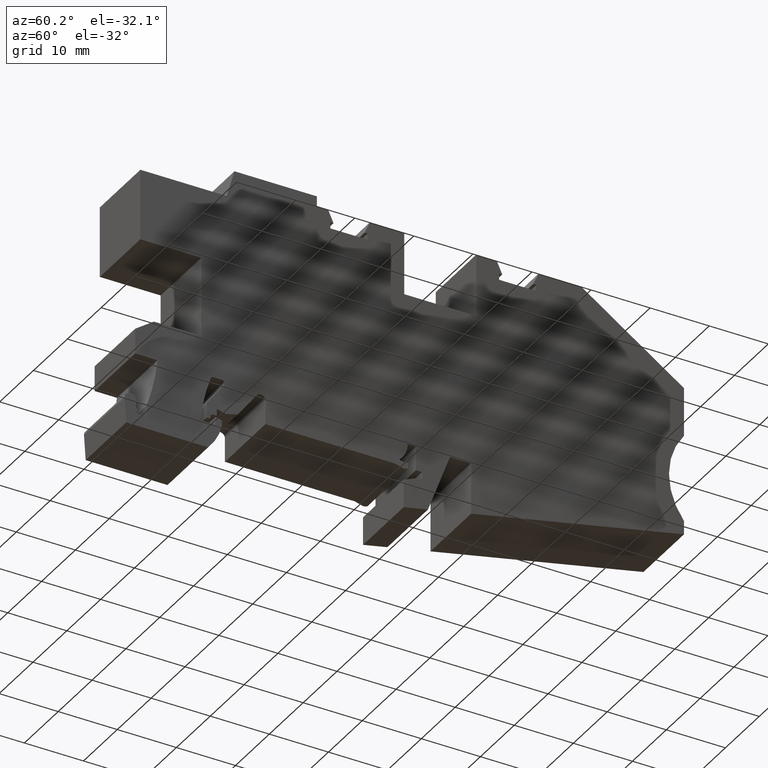
[diagram: clean part render]
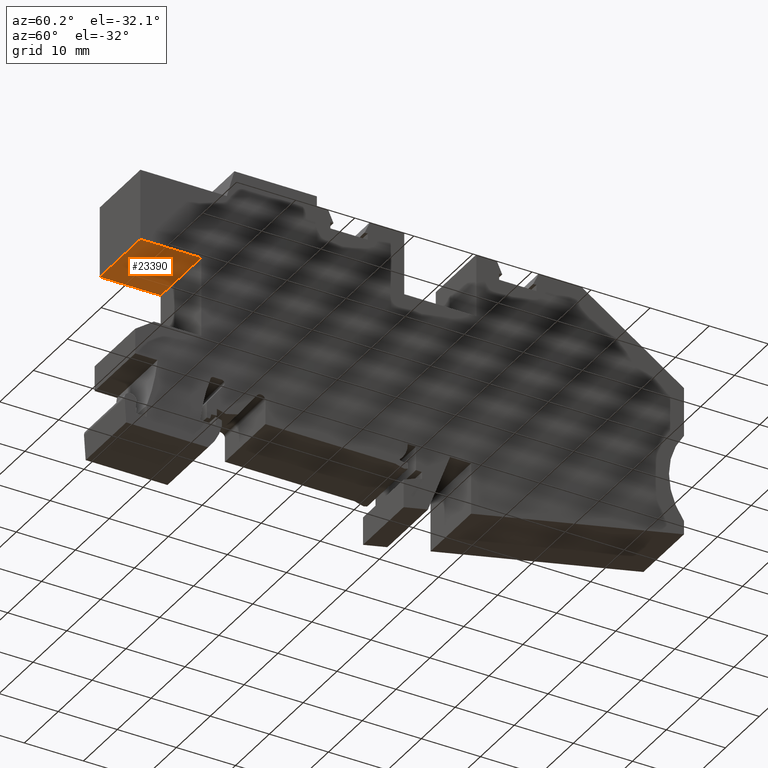
[diagram: same view with one face highlighted and labeled with its STEP entity id]
A machine part, auxiliary view. The second image highlights one B-rep face of the part: STEP entity #23390.
In plain terms, the highlighted planar face has unit normal (-0, -0, -1).
Its self-contained STEP definition (entity closure, byte-faithful):
#3330=CARTESIAN_POINT('',(1.03461049999998,25.3032885255108,20.25));
#3340=VERTEX_POINT('',#3330);
#3370=CARTESIAN_POINT('',(58.1696952865842,25.303285610452,20.25));
#3380=DIRECTION('',(-0.999999999999999,5.10204688052994E-8,0.));
#3390=VECTOR('',#3380,1.);
#3400=LINE('',#3370,#3390);
#3410=CARTESIAN_POINT('',(11.3346105,25.303288,20.25));
#3420=VERTEX_POINT('',#3410);
#3430=EDGE_CURVE('',#3420,#3340,#3400,.T.);
#10150=CARTESIAN_POINT('',(11.3346105,25.303288,32.2500000042363));
#10160=VERTEX_POINT('',#10150);
#10190=CARTESIAN_POINT('',(58.1696952865842,25.303285610452,
32.2500000042363));
#10200=DIRECTION('',(-0.999999999999999,5.10204688052994E-8,0.));
#10210=VECTOR('',#10200,1.);
#10220=LINE('',#10190,#10210);
#10230=CARTESIAN_POINT('',(1.03461049999998,25.3032885255108,
32.2500000042363));
#10240=VERTEX_POINT('',#10230);
#10250=EDGE_CURVE('',#10160,#10240,#10220,.T.);
#22780=CARTESIAN_POINT('',(1.03461049999997,25.3032885255109,20.25));
#22790=DIRECTION('',(0.,0.,-1.));
#22800=VECTOR('',#22790,1.);
#22810=LINE('',#22780,#22800);
#22820=EDGE_CURVE('',#10240,#3340,#22810,.T.);
#23230=CARTESIAN_POINT('',(11.3346105,25.303288,20.25));
#23240=DIRECTION('',(-5.10204688052994E-8,-0.999999999999999,-0.));
#23250=DIRECTION('',(-0.999999999999999,5.10204688052994E-8,0.));
#23260=AXIS2_PLACEMENT_3D('',#23230,#23240,#23250);
#23270=PLANE('',#23260);
#23280=ORIENTED_EDGE('',*,*,#22820,.T.);
#23290=ORIENTED_EDGE('',*,*,#10250,.T.);
#23300=CARTESIAN_POINT('',(11.3346105,25.303288,20.25));
#23310=DIRECTION('',(0.,0.,1.));
#23320=VECTOR('',#23310,1.);
#23330=LINE('',#23300,#23320);
#23340=EDGE_CURVE('',#3420,#10160,#23330,.T.);
#23350=ORIENTED_EDGE('',*,*,#23340,.T.);
#23360=ORIENTED_EDGE('',*,*,#3430,.F.);
#23370=EDGE_LOOP('',(#23360,#23350,#23290,#23280));
#23380=FACE_OUTER_BOUND('',#23370,.T.);
#23390=ADVANCED_FACE('',(#23380),#23270,.T.);